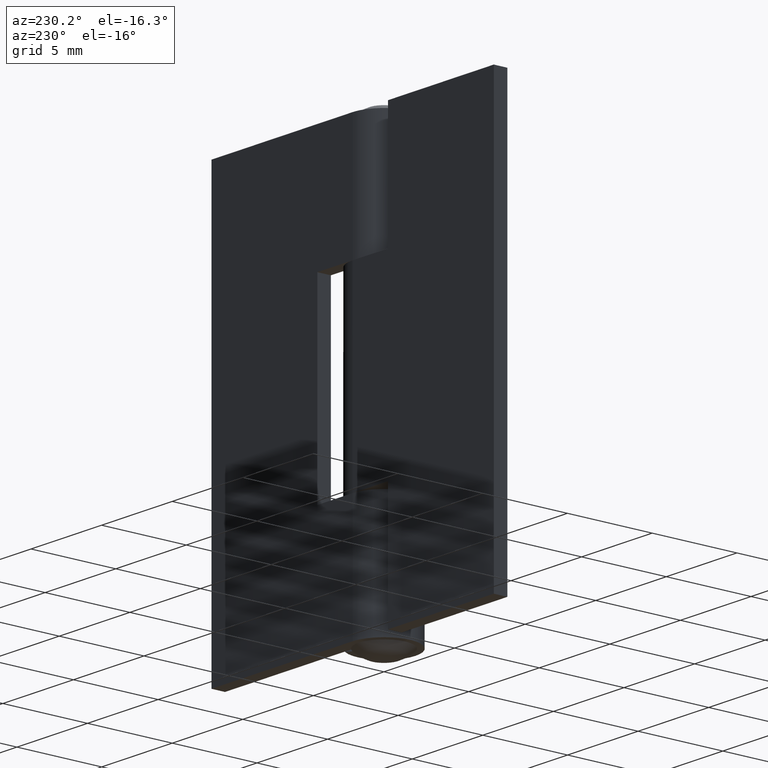
[diagram: clean part render]
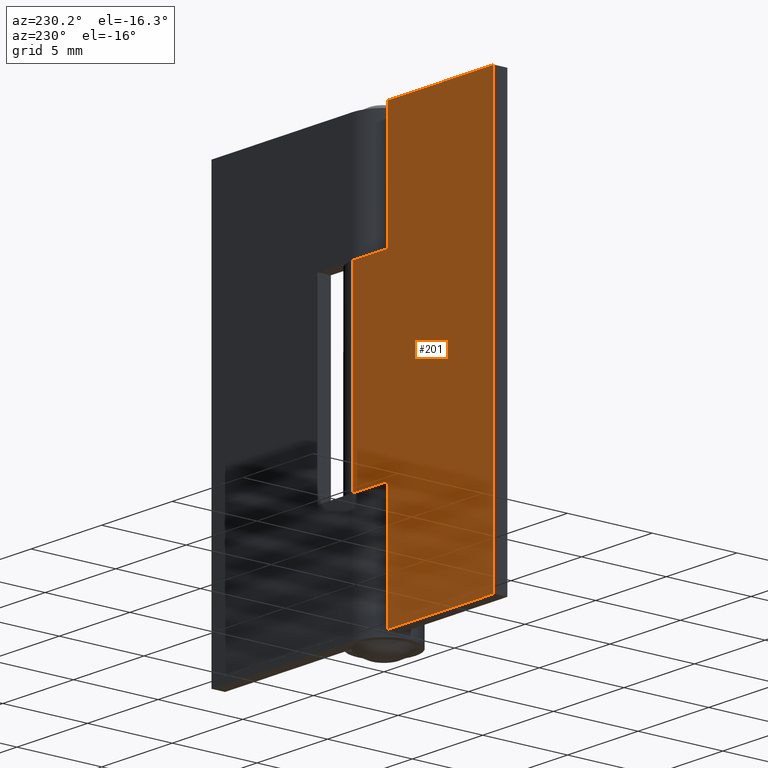
[diagram: same view with one face highlighted and labeled with its STEP entity id]
A machine part, auxiliary view. The second image highlights one B-rep face of the part: STEP entity #201.
In plain terms, the highlighted face is a freeform B-spline surface patch.
Its self-contained STEP definition (entity closure, byte-faithful):
#64=CARTESIAN_POINT('',(0.0,1.850000000000000,6.999999999999870));
#65=VERTEX_POINT('',#64);
#100=CARTESIAN_POINT('',(0.0,1.850000000000000,18.0));
#101=VERTEX_POINT('',#100);
#102=CARTESIAN_POINT('',(0.0,1.850000000000000,18.0));
#103=CARTESIAN_POINT('',(0.0,1.850000000000000,6.999999999999870));
#104=QUASI_UNIFORM_CURVE('',1,(#102,#103),.UNSPECIFIED.,.F.,.U.);
#105=EDGE_CURVE('',#101,#65,#104,.T.);
#146=CARTESIAN_POINT('',(-10.499499980618060,1.850000000000000,-1.248749951545149));
#147=CARTESIAN_POINT('',(-10.499499980618060,1.850000000000000,26.248750622097401));
#148=CARTESIAN_POINT('',(0.499500248838961,1.850000000000000,-1.248749951545149));
#149=CARTESIAN_POINT('',(0.499500248838961,1.850000000000000,26.248750622097401));
#150=B_SPLINE_SURFACE_WITH_KNOTS('',1,1,((#146,#148),(#147,#149)),.UNSPECIFIED.,.F.,.F.,.U.,(2,2),(2,2),(0.0,27.497500573642551),(0.0,10.999000229457019),.UNSPECIFIED.);
#151=ORIENTED_EDGE('',*,*,#105,.T.);
#152=CARTESIAN_POINT('',(-2.500000000000000,1.850000000000000,7.0));
#153=VERTEX_POINT('',#152);
#154=CARTESIAN_POINT('',(0.0,1.850000000000000,6.999999999999870));
#155=CARTESIAN_POINT('',(-2.500000000000000,1.850000000000000,7.0));
#156=QUASI_UNIFORM_CURVE('',1,(#154,#155),.UNSPECIFIED.,.F.,.U.);
#157=EDGE_CURVE('',#65,#153,#156,.T.);
#158=ORIENTED_EDGE('',*,*,#157,.T.);
#159=CARTESIAN_POINT('',(-2.500000000000000,1.850000000000000,0.0));
#160=VERTEX_POINT('',#159);
#161=CARTESIAN_POINT('',(-2.500000000000000,1.850000000000000,7.0));
#162=CARTESIAN_POINT('',(-2.500000000000000,1.850000000000000,0.0));
#163=QUASI_UNIFORM_CURVE('',1,(#161,#162),.UNSPECIFIED.,.F.,.U.);
#164=EDGE_CURVE('',#153,#160,#163,.T.);
#165=ORIENTED_EDGE('',*,*,#164,.T.);
#166=CARTESIAN_POINT('',(-10.0,1.850000000000000,0.0));
#167=VERTEX_POINT('',#166);
#168=CARTESIAN_POINT('',(-10.0,1.850000000000000,0.0));
#169=CARTESIAN_POINT('',(-2.500000000000000,1.850000000000000,0.0));
#170=QUASI_UNIFORM_CURVE('',1,(#168,#169),.UNSPECIFIED.,.F.,.U.);
#171=EDGE_CURVE('',#167,#160,#170,.T.);
#172=ORIENTED_EDGE('',*,*,#171,.F.);
#173=CARTESIAN_POINT('',(-10.0,1.850000000000000,25.0));
#174=VERTEX_POINT('',#173);
#175=CARTESIAN_POINT('',(-10.0,1.850000000000000,25.0));
#176=CARTESIAN_POINT('',(-10.0,1.850000000000000,0.0));
#177=QUASI_UNIFORM_CURVE('',1,(#175,#176),.UNSPECIFIED.,.F.,.U.);
#178=EDGE_CURVE('',#174,#167,#177,.T.);
#179=ORIENTED_EDGE('',*,*,#178,.F.);
#180=CARTESIAN_POINT('',(-2.500000000000000,1.850000000000000,25.0));
#181=VERTEX_POINT('',#180);
#182=CARTESIAN_POINT('',(-10.0,1.850000000000000,25.0));
#183=CARTESIAN_POINT('',(-2.500000000000000,1.850000000000000,25.0));
#184=QUASI_UNIFORM_CURVE('',1,(#182,#183),.UNSPECIFIED.,.F.,.U.);
#185=EDGE_CURVE('',#174,#181,#184,.T.);
#186=ORIENTED_EDGE('',*,*,#185,.T.);
#187=CARTESIAN_POINT('',(-2.500000000000000,1.850000000000000,18.0));
#188=VERTEX_POINT('',#187);
#189=CARTESIAN_POINT('',(-2.500000000000000,1.850000000000000,25.0));
#190=CARTESIAN_POINT('',(-2.500000000000000,1.850000000000000,18.0));
#191=QUASI_UNIFORM_CURVE('',1,(#189,#190),.UNSPECIFIED.,.F.,.U.);
#192=EDGE_CURVE('',#181,#188,#191,.T.);
#193=ORIENTED_EDGE('',*,*,#192,.T.);
#194=CARTESIAN_POINT('',(-2.500000000000000,1.850000000000000,18.0));
#195=CARTESIAN_POINT('',(0.0,1.850000000000000,18.0));
#196=QUASI_UNIFORM_CURVE('',1,(#194,#195),.UNSPECIFIED.,.F.,.U.);
#197=EDGE_CURVE('',#188,#101,#196,.T.);
#198=ORIENTED_EDGE('',*,*,#197,.T.);
#199=EDGE_LOOP('',(#151,#158,#165,#172,#179,#186,#193,#198));
#200=FACE_OUTER_BOUND('',#199,.T.);
#201=ADVANCED_FACE('',(#200),#150,.T.);